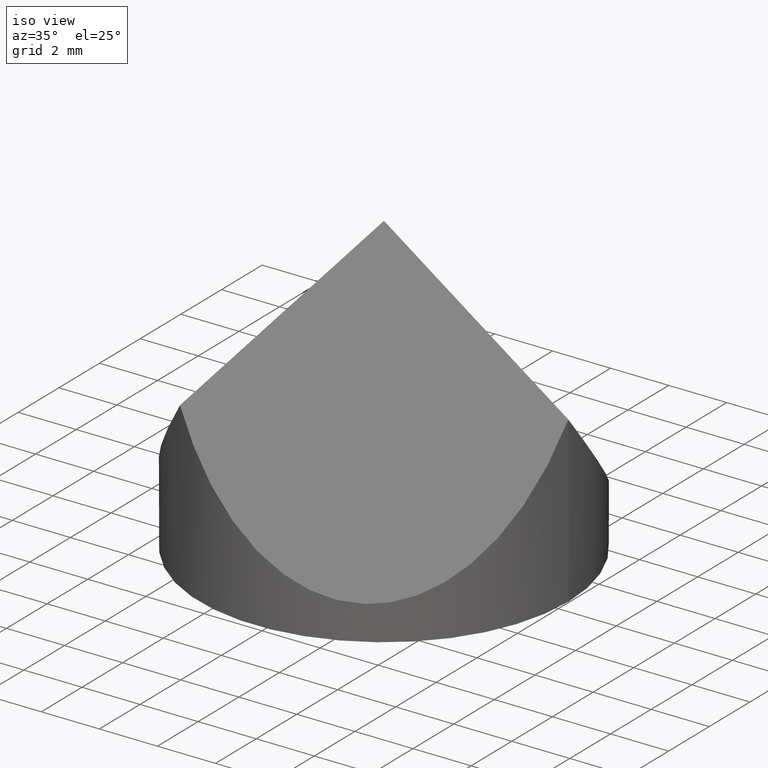
[diagram: clean part render]
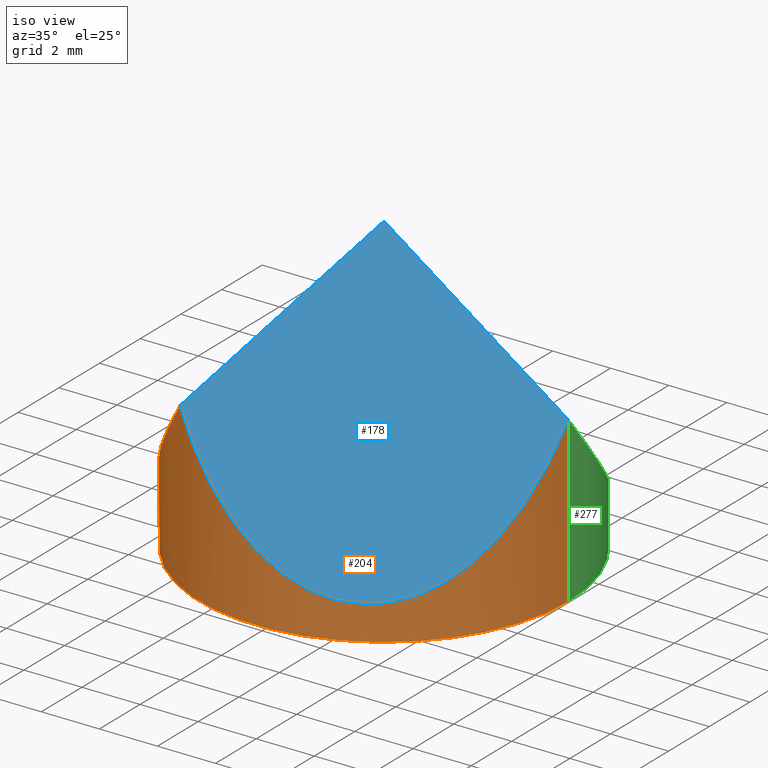
[diagram: same view with three faces highlighted in distinct colors, each labeled with its STEP entity id]
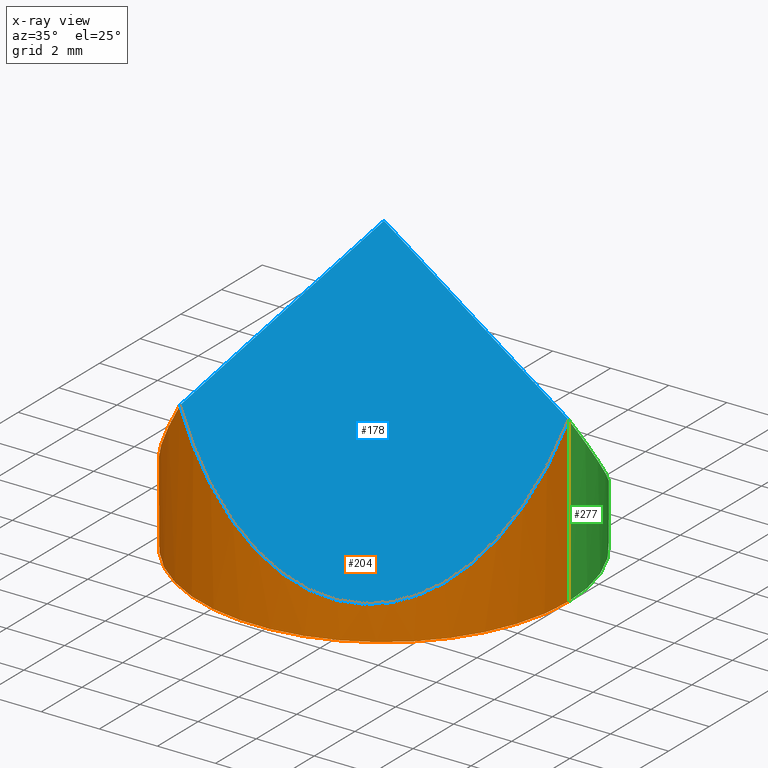
[diagram: x-ray of the same camera — body ghosted, the three highlighted faces saturated]
A machine part, iso view with three faces highlighted in distinct colors.
The next image is the same camera in x-ray (body ghosted, the three faces saturated) — at least one of them is partly hidden behind the body in this view.
Their STEP definitions:

[orange] entity #204 — the highlighted cylindrical surface (partial cylindrical patch) has radius 6.35 mm, axis along (-0, -0, -1).
#2 = CARTESIAN_POINT ( 'NONE',  ( -6.349999999999999600, 0.0000000000000000000, 1.181608968241170100 ) ) ;
#13 = LINE ( 'NONE', #113, #239 ) ;
#26 = ORIENTED_EDGE ( 'NONE', *, *, #305, .F. ) ;
#27 = CARTESIAN_POINT ( 'NONE',  ( 0.0000000000000000000, 0.0000000000000000000, 0.0000000000000000000 ) ) ;
#52 = VERTEX_POINT ( 'NONE', #295 ) ;
#59 = CYLINDRICAL_SURFACE ( 'NONE', #142, 6.349999999999999600 ) ;
#61 = CARTESIAN_POINT ( 'NONE',  ( 6.349999999999999600, 7.776507174585692200E-016, 10.16000000000000000 ) ) ;
#63 = EDGE_CURVE ( 'NONE', #298, #172, #154, .T. ) ;
#77 = CARTESIAN_POINT ( 'NONE',  ( 1.587499999999995200, -8.248891971046783000, -1.062988789698552200 ) ) ;
#84 = EDGE_CURVE ( 'NONE', #52, #122, #220, .T. ) ;
#86 = DIRECTION ( 'NONE',  ( -0.0000000000000000000, -0.0000000000000000000, -1.000000000000000000 ) ) ;
#101 = AXIS2_PLACEMENT_3D ( 'NONE', #27, #127, #128 ) ;
#103 = CARTESIAN_POINT ( 'NONE',  ( -5.187869342984408900, -4.337130657015589600, 2.824768569608221600 ) ) ;
#108 = CARTESIAN_POINT ( 'NONE',  ( -6.349999999999999600, -2.324261314031182300, 1.181608968241170100 ) ) ;
#109 =( BOUNDED_CURVE ( )  B_SPLINE_CURVE ( 3, ( #176, #103, #108, #2 ),
 .UNSPECIFIED., .F., .F. ) 
 B_SPLINE_CURVE_WITH_KNOTS ( ( 4, 4 ),
 ( 5.235987755982989700, 6.283185307179586200 ),
 .UNSPECIFIED. ) 
 CURVE ( )  GEOMETRIC_REPRESENTATION_ITEM ( )  RATIONAL_B_SPLINE_CURVE ( ( 1.000000000000000000, 0.9106836025229592100, 0.9106836025229592100, 1.000000000000000000 ) ) 
 REPRESENTATION_ITEM ( '' )  );
#112 = VERTEX_POINT ( 'NONE', #125 ) ;
#113 = CARTESIAN_POINT ( 'NONE',  ( -6.349999999999999600, 0.0000000000000000000, 10.16000000000000000 ) ) ;
#122 = VERTEX_POINT ( 'NONE', #226 ) ;
#125 = CARTESIAN_POINT ( 'NONE',  ( -6.349999999999999600, 0.0000000000000000000, 1.181608968241170100 ) ) ;
#127 = DIRECTION ( 'NONE',  ( 0.0000000000000000000, 0.0000000000000000000, 1.000000000000000000 ) ) ;
#128 = DIRECTION ( 'NONE',  ( 1.000000000000000000, 0.0000000000000000000, 0.0000000000000000000 ) ) ;
#132 = CARTESIAN_POINT ( 'NONE',  ( 0.0000000000000000000, 0.0000000000000000000, 10.16000000000000000 ) ) ;
#134 = VECTOR ( 'NONE', #212, 1000.000000000000000 ) ;
#142 = AXIS2_PLACEMENT_3D ( 'NONE', #132, #250, #300 ) ;
#147 = CARTESIAN_POINT ( 'NONE',  ( 6.350000000000003200, 1.145603619295304100E-015, 5.670804484120599100 ) ) ;
#148 = CARTESIAN_POINT ( 'NONE',  ( 6.350000000000000500, -5.499261314031188300, -1.062988789698535700 ) ) ;
#150 = CARTESIAN_POINT ( 'NONE',  ( -3.175000000000009600, -5.499261314031189200, 5.670804484120572500 ) ) ;
#154 = CIRCLE ( 'NONE', #101, 6.349999999999999600 ) ;
#164 = EDGE_CURVE ( 'NONE', #122, #112, #109, .T. ) ;
#170 = ORIENTED_EDGE ( 'NONE', *, *, #84, .T. ) ;
#172 = VERTEX_POINT ( 'NONE', #275 ) ;
#176 = CARTESIAN_POINT ( 'NONE',  ( -3.175000000000009600, -5.499261314031189200, 5.670804484120572500 ) ) ;
#180 = ORIENTED_EDGE ( 'NONE', *, *, #181, .T. ) ;
#181 = EDGE_CURVE ( 'NONE', #112, #298, #13, .T. ) ;
#200 = LINE ( 'NONE', #61, #134 ) ;
#204 = ADVANCED_FACE ( 'NONE', ( #246 ), #59, .T. ) ;
#211 = EDGE_LOOP ( 'NONE', ( #26, #170, #308, #180, #231 ) ) ;
#212 = DIRECTION ( 'NONE',  ( -0.0000000000000000000, -0.0000000000000000000, -1.000000000000000000 ) ) ;
#220 =( BOUNDED_CURVE ( )  B_SPLINE_CURVE ( 3, ( #147, #148, #77, #150 ),
 .UNSPECIFIED., .F., .F. ) 
 B_SPLINE_CURVE_WITH_KNOTS ( ( 4, 4 ),
 ( 5.235987755982986200, 7.330382858376182800 ),
 .UNSPECIFIED. ) 
 CURVE ( )  GEOMETRIC_REPRESENTATION_ITEM ( )  RATIONAL_B_SPLINE_CURVE ( ( 1.000000000000000000, 0.6666666666666663000, 0.6666666666666663000, 1.000000000000000000 ) ) 
 REPRESENTATION_ITEM ( '' )  );
#226 = CARTESIAN_POINT ( 'NONE',  ( -3.175000000000009600, -5.499261314031189200, 5.670804484120572500 ) ) ;
#230 = CARTESIAN_POINT ( 'NONE',  ( -6.349999999999999600, 0.0000000000000000000, 0.0000000000000000000 ) ) ;
#231 = ORIENTED_EDGE ( 'NONE', *, *, #63, .T. ) ;
#239 = VECTOR ( 'NONE', #86, 1000.000000000000000 ) ;
#246 = FACE_OUTER_BOUND ( 'NONE', #211, .T. ) ;
#250 = DIRECTION ( 'NONE',  ( -0.0000000000000000000, -0.0000000000000000000, -1.000000000000000000 ) ) ;
#275 = CARTESIAN_POINT ( 'NONE',  ( 6.349999999999999600, 7.776507174585692200E-016, 0.0000000000000000000 ) ) ;
#295 = CARTESIAN_POINT ( 'NONE',  ( 6.350000000000003200, 1.145603619295304100E-015, 5.670804484120599100 ) ) ;
#298 = VERTEX_POINT ( 'NONE', #230 ) ;
#300 = DIRECTION ( 'NONE',  ( -1.000000000000000000, 0.0000000000000000000, 0.0000000000000000000 ) ) ;
#305 = EDGE_CURVE ( 'NONE', #52, #172, #200, .T. ) ;
#308 = ORIENTED_EDGE ( 'NONE', *, *, #164, .T. ) ;

[blue] entity #178 — the highlighted planar face has unit normal (-0.4082, 0.7071, -0.5774).
#9 = AXIS2_PLACEMENT_3D ( 'NONE', #301, #155, #11 ) ;
#11 = DIRECTION ( 'NONE',  ( 0.0000000000000000000, 0.6325343505460013800, 0.7745323075116674600 ) ) ;
#18 = VECTOR ( 'NONE', #271, 999.9999999999998900 ) ;
#28 = PLANE ( 'NONE',  #9 ) ;
#31 = CARTESIAN_POINT ( 'NONE',  ( -8.673617379884035500E-016, -4.004885026051589500E-016, 10.16000000000000200 ) ) ;
#45 = VECTOR ( 'NONE', #75, 1000.000000000000200 ) ;
#52 = VERTEX_POINT ( 'NONE', #295 ) ;
#75 = DIRECTION ( 'NONE',  ( -0.8165531063768112200, -1.387778794088437300E-016, 0.5772703218305786900 ) ) ;
#76 = EDGE_CURVE ( 'NONE', #122, #107, #81, .T. ) ;
#77 = CARTESIAN_POINT ( 'NONE',  ( 1.587499999999995200, -8.248891971046783000, -1.062988789698552200 ) ) ;
#81 = LINE ( 'NONE', #228, #18 ) ;
#84 = EDGE_CURVE ( 'NONE', #52, #122, #220, .T. ) ;
#107 = VERTEX_POINT ( 'NONE', #31 ) ;
#122 = VERTEX_POINT ( 'NONE', #226 ) ;
#126 = EDGE_CURVE ( 'NONE', #52, #107, #289, .T. ) ;
#147 = CARTESIAN_POINT ( 'NONE',  ( 6.350000000000003200, 1.145603619295304100E-015, 5.670804484120599100 ) ) ;
#148 = CARTESIAN_POINT ( 'NONE',  ( 6.350000000000000500, -5.499261314031188300, -1.062988789698535700 ) ) ;
#150 = CARTESIAN_POINT ( 'NONE',  ( -3.175000000000009600, -5.499261314031189200, 5.670804484120572500 ) ) ;
#155 = DIRECTION ( 'NONE',  ( -0.4082200218682780500, 0.7070578185427394100, -0.5774302165486712200 ) ) ;
#178 = ADVANCED_FACE ( 'NONE', ( #207 ), #28, .F. ) ;
#207 = FACE_OUTER_BOUND ( 'NONE', #279, .T. ) ;
#219 = ORIENTED_EDGE ( 'NONE', *, *, #84, .F. ) ;
#220 =( BOUNDED_CURVE ( )  B_SPLINE_CURVE ( 3, ( #147, #148, #77, #150 ),
 .UNSPECIFIED., .F., .F. ) 
 B_SPLINE_CURVE_WITH_KNOTS ( ( 4, 4 ),
 ( 5.235987755982986200, 7.330382858376182800 ),
 .UNSPECIFIED. ) 
 CURVE ( )  GEOMETRIC_REPRESENTATION_ITEM ( )  RATIONAL_B_SPLINE_CURVE ( ( 1.000000000000000000, 0.6666666666666663000, 0.6666666666666663000, 1.000000000000000000 ) ) 
 REPRESENTATION_ITEM ( '' )  );
#226 = CARTESIAN_POINT ( 'NONE',  ( -3.175000000000009600, -5.499261314031189200, 5.670804484120572500 ) ) ;
#228 = CARTESIAN_POINT ( 'NONE',  ( -7.073520084914155100, -12.25169617543020500, 0.1586095601009106200 ) ) ;
#242 = ORIENTED_EDGE ( 'NONE', *, *, #126, .T. ) ;
#243 = CARTESIAN_POINT ( 'NONE',  ( 9.816313587227853100, 1.734723475976807100E-015, 3.220259694763891700 ) ) ;
#271 = DIRECTION ( 'NONE',  ( 0.4082765531884057200, 0.7071557336614138200, 0.5772703218305810200 ) ) ;
#279 = EDGE_LOOP ( 'NONE', ( #242, #312, #219 ) ) ;
#289 = LINE ( 'NONE', #243, #45 ) ;
#295 = CARTESIAN_POINT ( 'NONE',  ( 6.350000000000003200, 1.145603619295304100E-015, 5.670804484120599100 ) ) ;
#301 = CARTESIAN_POINT ( 'NONE',  ( 11.69134295108994500, 6.749999999999978700, 10.16000000000000000 ) ) ;
#312 = ORIENTED_EDGE ( 'NONE', *, *, #76, .F. ) ;

[green] entity #277 — the highlighted cylindrical surface (partial cylindrical patch) has radius 6.35 mm, axis along (-0, -0, -1).
#4 =( BOUNDED_CURVE ( )  B_SPLINE_CURVE ( 3, ( #90, #62, #255, #232 ),
 .UNSPECIFIED., .F., .F. ) 
 B_SPLINE_CURVE_WITH_KNOTS ( ( 4, 4 ),
 ( 0.0000000000000000000, 1.047197551196596100 ),
 .UNSPECIFIED. ) 
 CURVE ( )  GEOMETRIC_REPRESENTATION_ITEM ( )  RATIONAL_B_SPLINE_CURVE ( ( 1.000000000000000000, 0.9106836025229593200, 0.9106836025229593200, 1.000000000000000000 ) ) 
 REPRESENTATION_ITEM ( '' )  );
#5 = AXIS2_PLACEMENT_3D ( 'NONE', #163, #184, #91 ) ;
#13 = LINE ( 'NONE', #113, #239 ) ;
#14 = CARTESIAN_POINT ( 'NONE',  ( 6.350000000000000500, 5.499261314031192800, -1.062988789698542600 ) ) ;
#23 = VERTEX_POINT ( 'NONE', #175 ) ;
#29 = ORIENTED_EDGE ( 'NONE', *, *, #181, .F. ) ;
#34 = CARTESIAN_POINT ( 'NONE',  ( 0.0000000000000000000, 0.0000000000000000000, 10.16000000000000000 ) ) ;
#52 = VERTEX_POINT ( 'NONE', #295 ) ;
#60 = ORIENTED_EDGE ( 'NONE', *, *, #291, .T. ) ;
#61 = CARTESIAN_POINT ( 'NONE',  ( 6.349999999999999600, 7.776507174585692200E-016, 10.16000000000000000 ) ) ;
#62 = CARTESIAN_POINT ( 'NONE',  ( -6.349999999999998800, 2.324261314031181000, 1.181608968241169900 ) ) ;
#70 =( BOUNDED_CURVE ( )  B_SPLINE_CURVE ( 3, ( #251, #14, #131, #253 ),
 .UNSPECIFIED., .F., .T. ) 
 B_SPLINE_CURVE_WITH_KNOTS ( ( 4, 4 ),
 ( 5.235987755982986200, 7.330382858376182800 ),
 .UNSPECIFIED. ) 
 CURVE ( )  GEOMETRIC_REPRESENTATION_ITEM ( )  RATIONAL_B_SPLINE_CURVE ( ( 1.000000000000000000, 0.6666666666666663000, 0.6666666666666663000, 1.000000000000000000 ) ) 
 REPRESENTATION_ITEM ( '' )  );
#79 = CYLINDRICAL_SURFACE ( 'NONE', #223, 6.349999999999999600 ) ;
#86 = DIRECTION ( 'NONE',  ( -0.0000000000000000000, -0.0000000000000000000, -1.000000000000000000 ) ) ;
#90 = CARTESIAN_POINT ( 'NONE',  ( -6.349999999999999600, 0.0000000000000000000, 1.181608968241170100 ) ) ;
#91 = DIRECTION ( 'NONE',  ( 1.000000000000000000, 0.0000000000000000000, 0.0000000000000000000 ) ) ;
#100 = EDGE_LOOP ( 'NONE', ( #227, #151, #196, #29, #60 ) ) ;
#112 = VERTEX_POINT ( 'NONE', #125 ) ;
#113 = CARTESIAN_POINT ( 'NONE',  ( -6.349999999999999600, 0.0000000000000000000, 10.16000000000000000 ) ) ;
#125 = CARTESIAN_POINT ( 'NONE',  ( -6.349999999999999600, 0.0000000000000000000, 1.181608968241170100 ) ) ;
#131 = CARTESIAN_POINT ( 'NONE',  ( 1.587499999999992800, 8.248891971046784700, -1.062988789698558100 ) ) ;
#134 = VECTOR ( 'NONE', #212, 1000.000000000000000 ) ;
#151 = ORIENTED_EDGE ( 'NONE', *, *, #305, .T. ) ;
#163 = CARTESIAN_POINT ( 'NONE',  ( 0.0000000000000000000, 0.0000000000000000000, 0.0000000000000000000 ) ) ;
#172 = VERTEX_POINT ( 'NONE', #275 ) ;
#175 = CARTESIAN_POINT ( 'NONE',  ( -3.175000000000005200, 5.499261314031177700, 5.670804484120573400 ) ) ;
#181 = EDGE_CURVE ( 'NONE', #112, #298, #13, .T. ) ;
#183 = DIRECTION ( 'NONE',  ( -0.0000000000000000000, -0.0000000000000000000, -1.000000000000000000 ) ) ;
#184 = DIRECTION ( 'NONE',  ( 0.0000000000000000000, 0.0000000000000000000, 1.000000000000000000 ) ) ;
#196 = ORIENTED_EDGE ( 'NONE', *, *, #247, .T. ) ;
#200 = LINE ( 'NONE', #61, #134 ) ;
#205 = EDGE_CURVE ( 'NONE', #52, #23, #70, .T. ) ;
#212 = DIRECTION ( 'NONE',  ( -0.0000000000000000000, -0.0000000000000000000, -1.000000000000000000 ) ) ;
#223 = AXIS2_PLACEMENT_3D ( 'NONE', #34, #183, #258 ) ;
#227 = ORIENTED_EDGE ( 'NONE', *, *, #205, .F. ) ;
#230 = CARTESIAN_POINT ( 'NONE',  ( -6.349999999999999600, 0.0000000000000000000, 0.0000000000000000000 ) ) ;
#232 = CARTESIAN_POINT ( 'NONE',  ( -3.175000000000005200, 5.499261314031177700, 5.670804484120573400 ) ) ;
#239 = VECTOR ( 'NONE', #86, 1000.000000000000000 ) ;
#247 = EDGE_CURVE ( 'NONE', #172, #298, #265, .T. ) ;
#251 = CARTESIAN_POINT ( 'NONE',  ( 6.350000000000003200, 1.145603619295304100E-015, 5.670804484120599100 ) ) ;
#253 = CARTESIAN_POINT ( 'NONE',  ( -3.175000000000005200, 5.499261314031177700, 5.670804484120573400 ) ) ;
#255 = CARTESIAN_POINT ( 'NONE',  ( -5.187869342984409800, 4.337130657015586100, 2.824768569608218100 ) ) ;
#258 = DIRECTION ( 'NONE',  ( -1.000000000000000000, 0.0000000000000000000, 0.0000000000000000000 ) ) ;
#262 = FACE_OUTER_BOUND ( 'NONE', #100, .T. ) ;
#265 = CIRCLE ( 'NONE', #5, 6.349999999999999600 ) ;
#275 = CARTESIAN_POINT ( 'NONE',  ( 6.349999999999999600, 7.776507174585692200E-016, 0.0000000000000000000 ) ) ;
#277 = ADVANCED_FACE ( 'NONE', ( #262 ), #79, .T. ) ;
#291 = EDGE_CURVE ( 'NONE', #112, #23, #4, .T. ) ;
#295 = CARTESIAN_POINT ( 'NONE',  ( 6.350000000000003200, 1.145603619295304100E-015, 5.670804484120599100 ) ) ;
#298 = VERTEX_POINT ( 'NONE', #230 ) ;
#305 = EDGE_CURVE ( 'NONE', #52, #172, #200, .T. ) ;